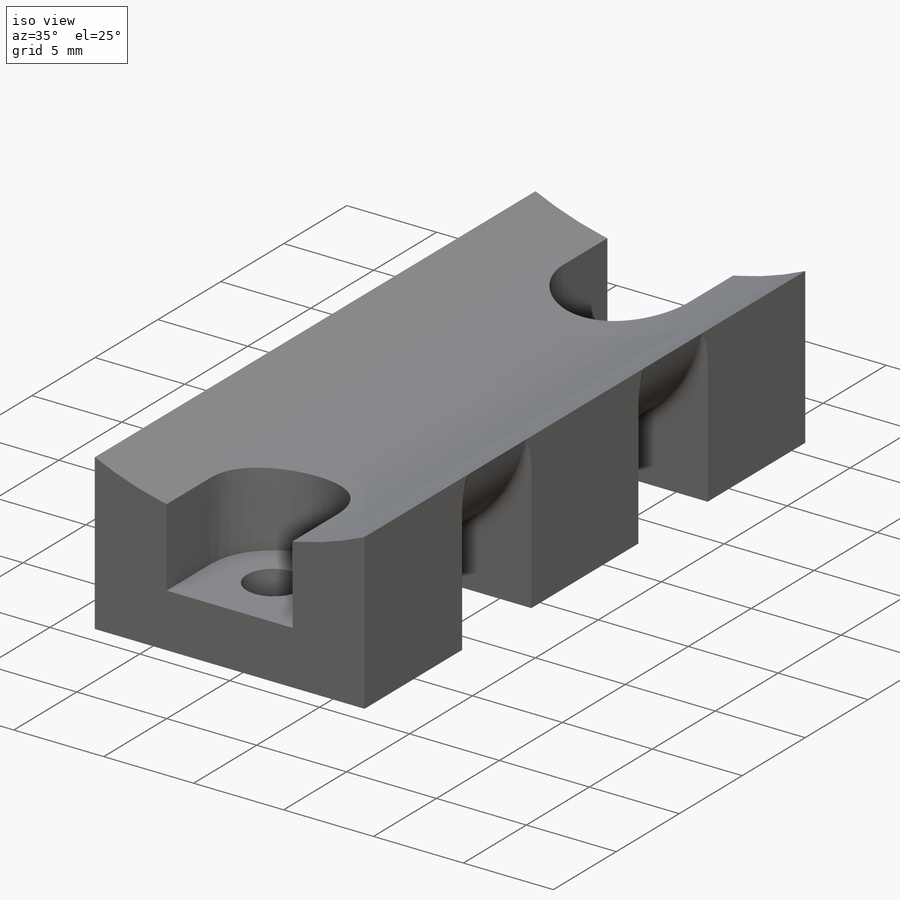
[diagram: iso view]
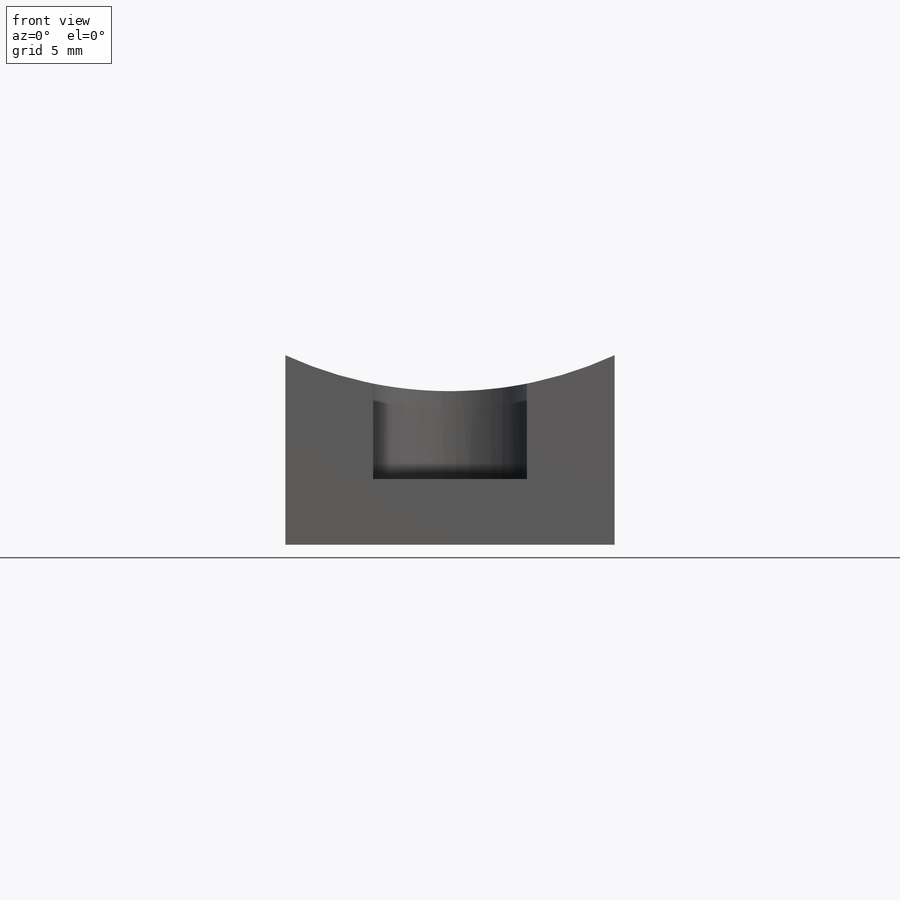
[diagram: front view]
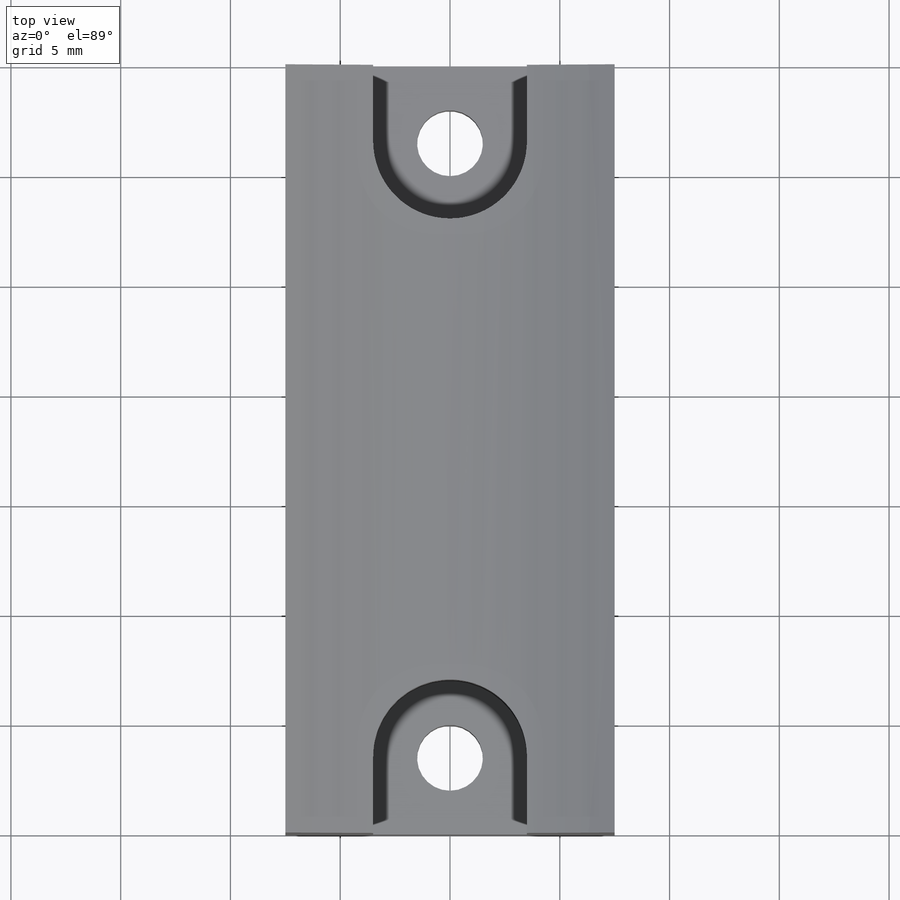
[diagram: top view]
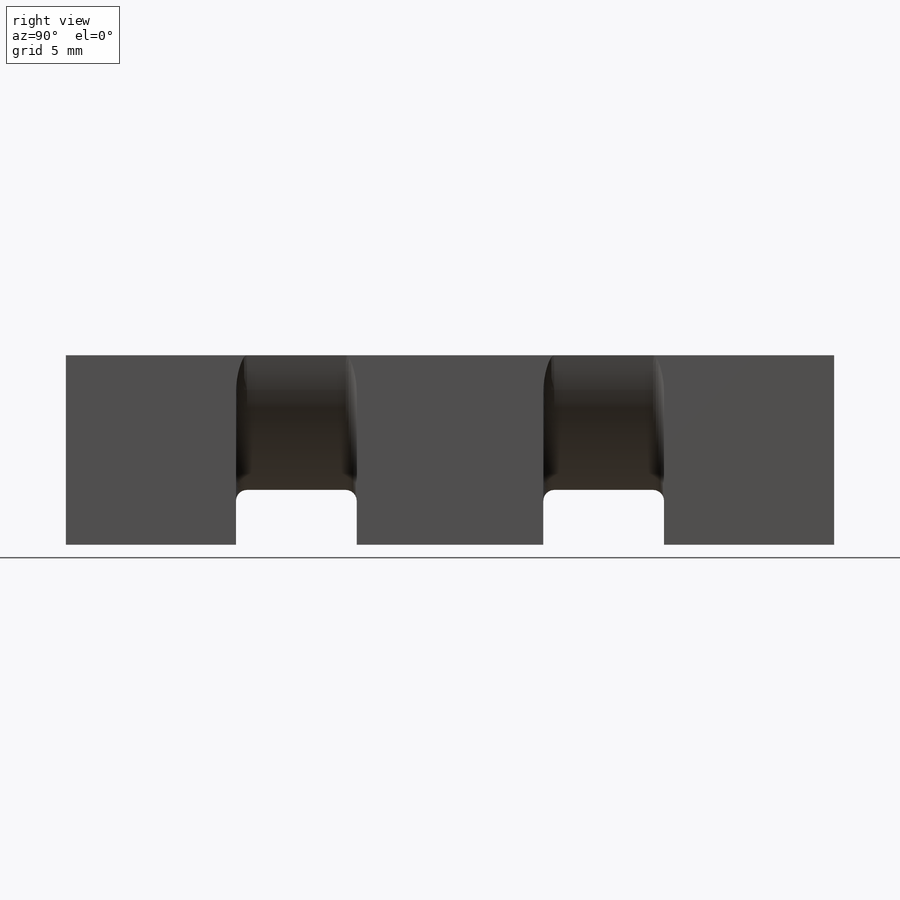
[diagram: right view]
SOLIDWORKS PART (.sldprt)
format: sldprt  version: not decoded by parser v0  size: 300,032 bytes
history: native  units: mm
features: sketch x6, cut_extrude x4, plane x3, material x1, extrude x1, fillet x1 (+12 scaffold rows collapsed)
feature tree (28):
  scaffold x12  (default folders/planes/origin — collapsed)
  material  "Material <not specified>"
  sketch  "Sketch1"  dims[c1.D4=36.0mm c1.D1=~17.562311mm c1.D2=~24.233266mm c2.D1=15.0mm c2.D2=7.5mm c2.D3=15.0mm c2.D5=25.0mm]
  extrude  "Boss-Extrude1"  Depth=35mm
  sketch  "Sketch2"  dims[c1.D1=7.0mm c1.D2=7.0mm c1.D3=7.0mm c2.D1=30.0mm c2.D4=14.0mm c2.D5=14.0mm]
  plane  "Plane1"  Offset=3mm
  sketch  "Sketch3"  dims[D1=~6.689638mm]
  cut_extrude  "Cut-Extrude1"  Depth=30mm
  plane  "Plane2"  Offset=7.75mm
  sketch  "Sketch5"  dims[D1=45.0mm D2=~36.299543mm]
  cut_extrude  "Cut-Extrude3"  Depth=5.5mm
  plane  "Plane3"  Offset=7.75mm
  sketch  "Sketch6"  dims[D1=0.0mm]
  cut_extrude  "Cut-Extrude4"  Depth=5.5mm
  sketch  "Sketch7"  dims[D1=3.0mm D2=3.0mm]
  cut_extrude  "Cut-Extrude5"  [1 undecoded]
  fillet  "Fillet1"  Radius=0.5mm
decode coverage: 11 of 12 modeling features carry decoded parameters
note: ~ marks probable driven/reference dimensions
note: 1 parameter value undecoded
note: suppression state not decoded; provenance and decode notes live in map.json
